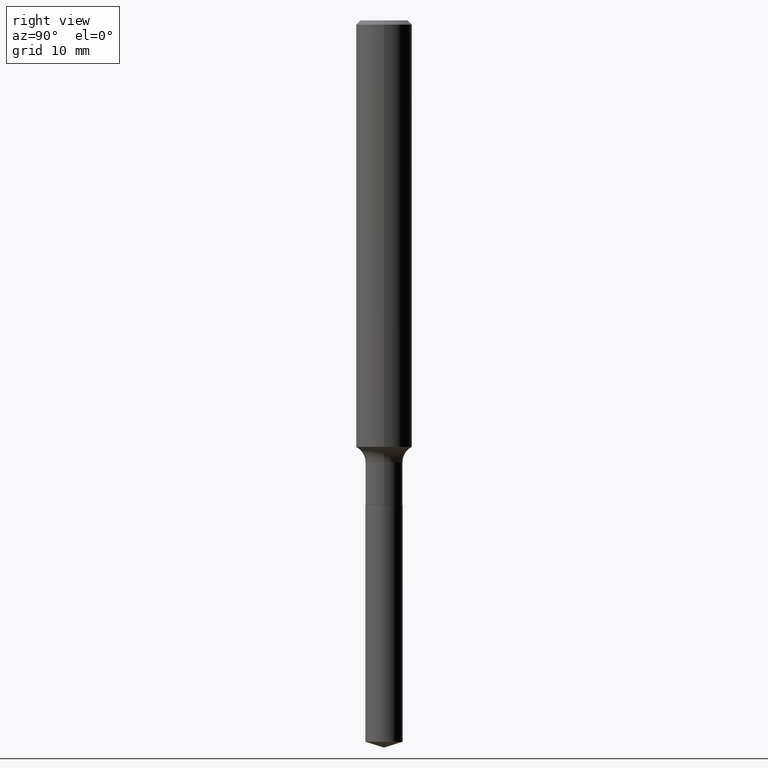
[diagram: clean part render]
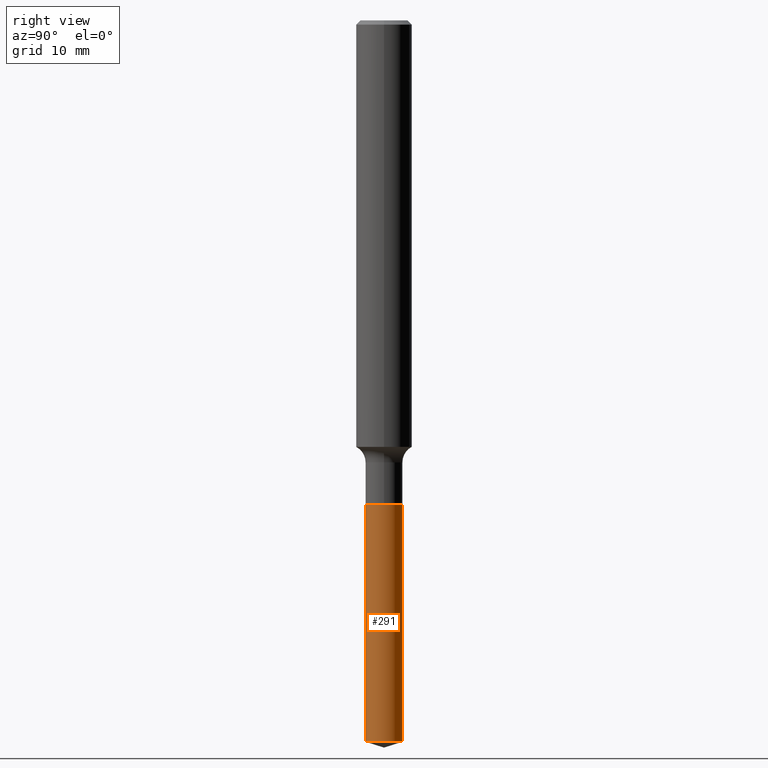
[diagram: same view with one face highlighted and labeled with its STEP entity id]
A machine part, right view. The second image highlights one B-rep face of the part: STEP entity #291.
In plain terms, the highlighted cylindrical surface (edge-blend (fillet) strip) has radius 2.1082 mm, axis along (-0, 0, 1).
Its self-contained STEP definition (entity closure, byte-faithful):
#18 = VECTOR ( 'NONE', #132, 39.37007874015748143 ) ;
#19 = VECTOR ( 'NONE', #126, 39.37007874015748143 ) ;
#32 = DIRECTION ( 'NONE',  ( -2.445486196868284062E-29, 3.491456434395062399E-15, 1.000000000000000000 ) ) ;
#48 = CARTESIAN_POINT ( 'NONE',  ( 5.897504706809620711E-16, 0.08299999999999244094, -2.165999999999999925 ) ) ;
#65 = VERTEX_POINT ( 'NONE', #169 ) ;
#77 = EDGE_CURVE ( 'NONE', #195, #457, #321, .T. ) ;
#102 = ORIENTED_EDGE ( 'NONE', *, *, #388, .F. ) ;
#116 = CARTESIAN_POINT ( 'NONE',  ( -5.795859022479071374E-16, -0.08300000000000756772, -2.165999999999999481 ) ) ;
#126 = DIRECTION ( 'NONE',  ( -2.445486196868284062E-29, 3.491456434395062794E-15, 1.000000000000000000 ) ) ;
#132 = DIRECTION ( 'NONE',  ( -2.445486196868284062E-29, 3.491456434395062794E-15, 1.000000000000000000 ) ) ;
#139 = DIRECTION ( 'NONE',  ( -6.982962677686266711E-15, -1.000000000000000000, 6.582766249793405374E-15 ) ) ;
#159 = FACE_OUTER_BOUND ( 'NONE', #172, .T. ) ;
#167 = CYLINDRICAL_SURFACE ( 'NONE', #333, 0.08300000000000000433 ) ;
#169 = CARTESIAN_POINT ( 'NONE',  ( -5.795859022478812036E-16, -0.08300000000001124534, -3.223830200523043477 ) ) ;
#172 = EDGE_LOOP ( 'NONE', ( #413, #438, #102, #215 ) ) ;
#195 = VERTEX_POINT ( 'NONE', #445 ) ;
#202 = CARTESIAN_POINT ( 'NONE',  ( -5.795859022479071374E-16, -0.08300000000000756772, -2.165999999999999481 ) ) ;
#215 = ORIENTED_EDGE ( 'NONE', *, *, #276, .F. ) ;
#223 = DIRECTION ( 'NONE',  ( -2.445486196868284062E-29, 3.491456434395062399E-15, 1.000000000000000000 ) ) ;
#236 = LINE ( 'NONE', #202, #19 ) ;
#242 = DIRECTION ( 'NONE',  ( -6.982962677686266711E-15, -1.000000000000000000, 3.291383124896702687E-15 ) ) ;
#276 = EDGE_CURVE ( 'NONE', #65, #484, #236, .T. ) ;
#291 = ADVANCED_FACE ( 'NONE', ( #159 ), #167, .T. ) ;
#298 = AXIS2_PLACEMENT_3D ( 'NONE', #410, #223, #378 ) ;
#319 = CARTESIAN_POINT ( 'NONE',  ( 5.296885434197005931E-29, -7.562548579934253227E-15, -2.165999999999999925 ) ) ;
#321 = LINE ( 'NONE', #429, #18 ) ;
#323 = EDGE_CURVE ( 'NONE', #65, #195, #376, .T. ) ;
#333 = AXIS2_PLACEMENT_3D ( 'NONE', #319, #434, #242 ) ;
#355 = CIRCLE ( 'NONE', #298, 0.08300000000000000433 ) ;
#376 = CIRCLE ( 'NONE', #437, 0.08300000000000000433 ) ;
#378 = DIRECTION ( 'NONE',  ( -6.982962677686266711E-15, -1.000000000000000000, 3.291383124896702687E-15 ) ) ;
#388 = EDGE_CURVE ( 'NONE', #484, #457, #355, .T. ) ;
#410 = CARTESIAN_POINT ( 'NONE',  ( 5.296885434197005931E-29, -7.562548579934253227E-15, -2.165999999999999925 ) ) ;
#413 = ORIENTED_EDGE ( 'NONE', *, *, #323, .T. ) ;
#429 = CARTESIAN_POINT ( 'NONE',  ( 5.897504706809361373E-16, 0.08299999999999244094, -2.165999999999999925 ) ) ;
#434 = DIRECTION ( 'NONE',  ( -2.445486196868284062E-29, 3.491456434395062399E-15, 1.000000000000000000 ) ) ;
#437 = AXIS2_PLACEMENT_3D ( 'NONE', #475, #32, #139 ) ;
#438 = ORIENTED_EDGE ( 'NONE', *, *, #77, .T. ) ;
#445 = CARTESIAN_POINT ( 'NONE',  ( 5.897504706809619725E-16, 0.08299999999998876332, -3.223830200523044365 ) ) ;
#457 = VERTEX_POINT ( 'NONE', #48 ) ;
#475 = CARTESIAN_POINT ( 'NONE',  ( 7.883794588206518333E-29, -1.125591664004785458E-14, -3.223830200523043921 ) ) ;
#484 = VERTEX_POINT ( 'NONE', #116 ) ;